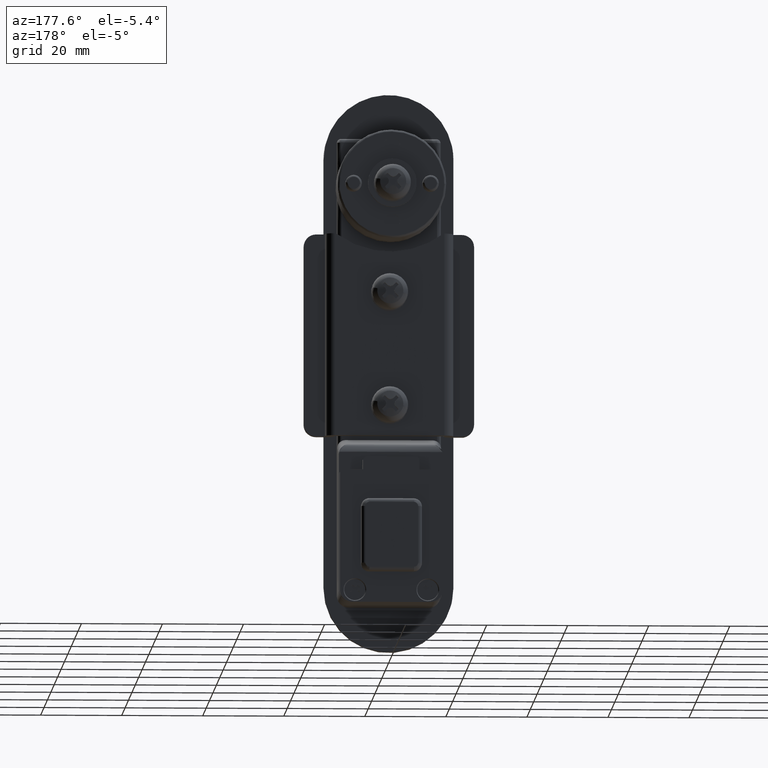
[diagram: clean part render]
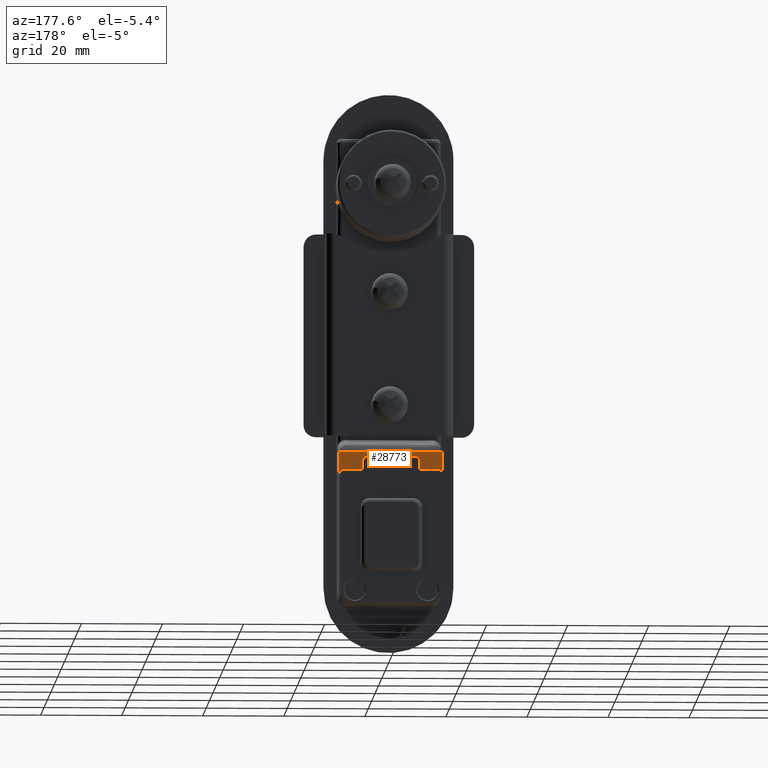
[diagram: same view with one face highlighted and labeled with its STEP entity id]
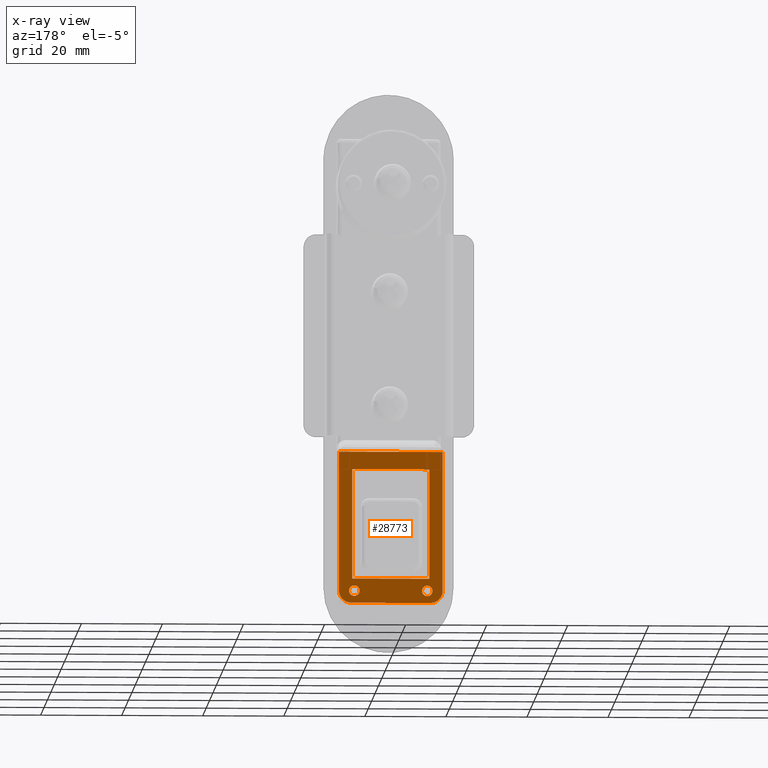
[diagram: x-ray of the same camera — body ghosted, the highlighted face saturated]
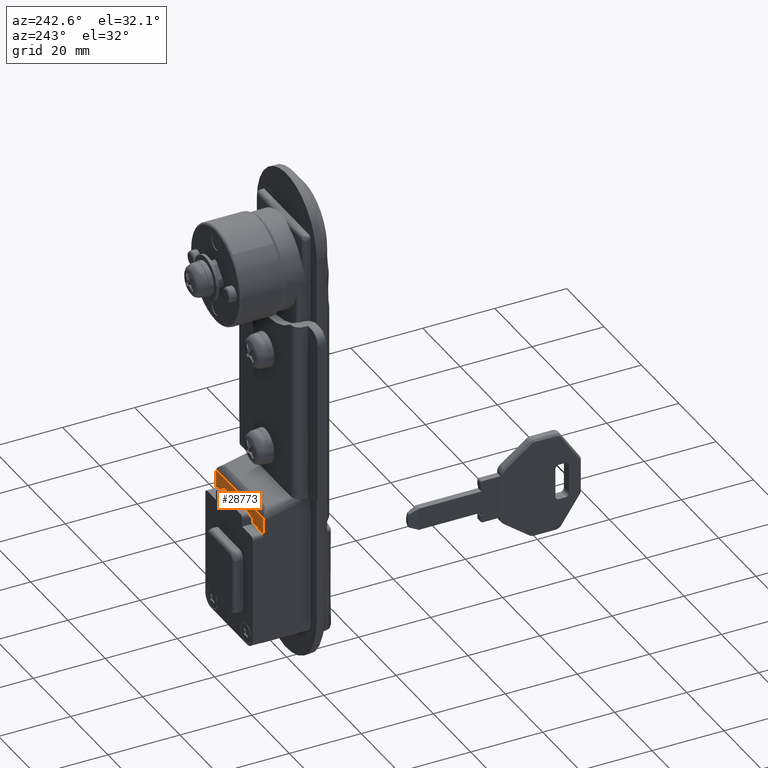
[diagram: same view with one face highlighted and labeled with its STEP entity id]
A machine part, auxiliary view. The second image highlights one B-rep face of the part: STEP entity #28773.
The next image is the same camera in x-ray: the body ghosted, the highlighted face saturated — about 0% of this face is hidden behind the body in this view.
A second angle (auxiliary view) of the same face is appended — the face is thin or edge-on in the first view.
In plain terms, the highlighted face is a freeform B-spline surface patch.
Its self-contained STEP definition (entity closure, byte-faithful):
#23675=CARTESIAN_POINT('',(13.000000000004119,-10.290912383978570,-100.046555493890910));
#23676=VERTEX_POINT('',#23675);
#23682=CARTESIAN_POINT('',(13.000000000004119,-8.999999999793321,-101.499999999680990));
#23683=VERTEX_POINT('',#23682);
#23684=CARTESIAN_POINT('',(13.000000000004118,-10.290912383978569,-100.046555493890910));
#23685=CARTESIAN_POINT('',(13.000000000004121,-10.299999999793325,-100.123008643389440));
#23686=CARTESIAN_POINT('',(13.000000000004119,-10.299999999793320,-100.199999999681000));
#23687=CARTESIAN_POINT('',(13.000000000004119,-10.299999999793322,-101.499999999680980));
#23688=CARTESIAN_POINT('',(13.000000000004119,-8.999999999793321,-101.499999999680990));
#23696=(BOUNDED_CURVE()B_SPLINE_CURVE(2,(#23684,#23685,#23686,#23687,#23688),.UNSPECIFIED.,.F.,.U.)B_SPLINE_CURVE_WITH_KNOTS((3,2,3),(0.229562473322856,0.250000000000000,0.500000000000000),.UNSPECIFIED.)CURVE()GEOMETRIC_REPRESENTATION_ITEM()RATIONAL_B_SPLINE_CURVE((0.956026753810013,0.976055948107782,1.0,0.707106781186548,1.0))REPRESENTATION_ITEM(''));
#23697=EDGE_CURVE('',#23676,#23683,#23696,.T.);
#23699=CARTESIAN_POINT('',(13.000000000004119,-7.702424762001204,-100.279363103631890));
#23700=VERTEX_POINT('',#23699);
#23701=CARTESIAN_POINT('',(13.000000000004119,-8.999999999793321,-101.499999999680990));
#23702=CARTESIAN_POINT('',(13.000000000004118,-7.777082117642104,-101.499999999680980));
#23703=CARTESIAN_POINT('',(13.000000000004125,-7.702424762001204,-100.279363103631940));
#23711=(BOUNDED_CURVE()B_SPLINE_CURVE(2,(#23701,#23702,#23703),.UNSPECIFIED.,.F.,.U.)B_SPLINE_CURVE_WITH_KNOTS((3,3),(0.500000000000000,0.739332961562291),.UNSPECIFIED.)CURVE()GEOMETRIC_REPRESENTATION_ITEM()RATIONAL_B_SPLINE_CURVE((1.0,0.719603994079458,0.976072040216523))REPRESENTATION_ITEM(''));
#23712=EDGE_CURVE('',#23683,#23700,#23711,.T.);
#23786=CARTESIAN_POINT('',(13.000000000004119,-8.999999999793321,-98.899999999681000));
#23787=VERTEX_POINT('',#23786);
#23788=CARTESIAN_POINT('',(13.000000000004119,-7.702424762001204,-100.279363103631940));
#23789=CARTESIAN_POINT('',(13.000000000004121,-7.699999999793321,-100.239718594531960));
#23790=CARTESIAN_POINT('',(13.000000000004119,-7.699999999793321,-100.199999999681000));
#23791=CARTESIAN_POINT('',(13.000000000004119,-7.699999999793321,-98.899999999681000));
#23792=CARTESIAN_POINT('',(13.000000000004119,-8.999999999793321,-98.899999999681000));
#23800=(BOUNDED_CURVE()B_SPLINE_CURVE(2,(#23788,#23789,#23790,#23791,#23792),.UNSPECIFIED.,.F.,.U.)B_SPLINE_CURVE_WITH_KNOTS((3,2,3),(0.739332961562291,0.750000000000000,1.0),.UNSPECIFIED.)CURVE()GEOMETRIC_REPRESENTATION_ITEM()RATIONAL_B_SPLINE_CURVE((0.976072040216525,0.987502787107091,1.0,0.707106781186548,1.0))REPRESENTATION_ITEM(''));
#23801=EDGE_CURVE('',#23700,#23787,#23800,.T.);
#23803=CARTESIAN_POINT('',(13.000000000004119,-8.999999999793321,-98.899999999681000));
#23804=CARTESIAN_POINT('',(13.000000000004121,-10.154626882203704,-98.899999999681015));
#23805=CARTESIAN_POINT('',(13.000000000004116,-10.290912383978569,-100.046555493890910));
#23813=(BOUNDED_CURVE()B_SPLINE_CURVE(2,(#23803,#23804,#23805),.UNSPECIFIED.,.F.,.U.)B_SPLINE_CURVE_WITH_KNOTS((3,3),(0.0,0.229562473322856),.UNSPECIFIED.)CURVE()GEOMETRIC_REPRESENTATION_ITEM()RATIONAL_B_SPLINE_CURVE((1.0,0.731050833078765,0.956026753810013))REPRESENTATION_ITEM(''));
#23814=EDGE_CURVE('',#23787,#23676,#23813,.T.);
#23861=CARTESIAN_POINT('',(13.000000000004119,7.709087616021433,-100.046555493890910));
#23862=VERTEX_POINT('',#23861);
#23868=CARTESIAN_POINT('',(13.000000000004119,9.000000000206679,-101.499999999680990));
#23869=VERTEX_POINT('',#23868);
#23870=CARTESIAN_POINT('',(13.000000000004118,7.709087616021433,-100.046555493890920));
#23871=CARTESIAN_POINT('',(13.000000000004121,7.700000000206680,-100.123008643389440));
#23872=CARTESIAN_POINT('',(13.000000000004119,7.700000000206679,-100.199999999681000));
#23873=CARTESIAN_POINT('',(13.000000000004119,7.700000000206678,-101.499999999680980));
#23874=CARTESIAN_POINT('',(13.000000000004119,9.000000000206679,-101.499999999680990));
#23882=(BOUNDED_CURVE()B_SPLINE_CURVE(2,(#23870,#23871,#23872,#23873,#23874),.UNSPECIFIED.,.F.,.U.)B_SPLINE_CURVE_WITH_KNOTS((3,2,3),(0.229562473322856,0.250000000000000,0.500000000000000),.UNSPECIFIED.)CURVE()GEOMETRIC_REPRESENTATION_ITEM()RATIONAL_B_SPLINE_CURVE((0.956026753810013,0.976055948107782,1.0,0.707106781186548,1.0))REPRESENTATION_ITEM(''));
#23883=EDGE_CURVE('',#23862,#23869,#23882,.T.);
#23885=CARTESIAN_POINT('',(13.000000000004119,10.297575237998799,-100.279363103631890));
#23886=VERTEX_POINT('',#23885);
#23887=CARTESIAN_POINT('',(13.000000000004119,9.000000000206679,-101.499999999680990));
#23888=CARTESIAN_POINT('',(13.000000000004118,10.222917882357894,-101.499999999680980));
#23889=CARTESIAN_POINT('',(13.000000000004125,10.297575237998799,-100.279363103631940));
#23897=(BOUNDED_CURVE()B_SPLINE_CURVE(2,(#23887,#23888,#23889),.UNSPECIFIED.,.F.,.U.)B_SPLINE_CURVE_WITH_KNOTS((3,3),(0.500000000000000,0.739332961562291),.UNSPECIFIED.)CURVE()GEOMETRIC_REPRESENTATION_ITEM()RATIONAL_B_SPLINE_CURVE((1.0,0.719603994079458,0.976072040216523))REPRESENTATION_ITEM(''));
#23898=EDGE_CURVE('',#23869,#23886,#23897,.T.);
#23972=CARTESIAN_POINT('',(13.000000000004119,9.000000000206679,-98.899999999681000));
#23973=VERTEX_POINT('',#23972);
#23974=CARTESIAN_POINT('',(13.000000000004123,10.297575237998799,-100.279363103631940));
#23975=CARTESIAN_POINT('',(13.000000000004123,10.300000000206680,-100.239718594531960));
#23976=CARTESIAN_POINT('',(13.000000000004119,10.300000000206680,-100.199999999681000));
#23977=CARTESIAN_POINT('',(13.000000000004119,10.300000000206678,-98.899999999681000));
#23978=CARTESIAN_POINT('',(13.000000000004119,9.000000000206679,-98.899999999681000));
#23986=(BOUNDED_CURVE()B_SPLINE_CURVE(2,(#23974,#23975,#23976,#23977,#23978),.UNSPECIFIED.,.F.,.U.)B_SPLINE_CURVE_WITH_KNOTS((3,2,3),(0.739332961562291,0.750000000000000,1.0),.UNSPECIFIED.)CURVE()GEOMETRIC_REPRESENTATION_ITEM()RATIONAL_B_SPLINE_CURVE((0.976072040216524,0.987502787107091,1.0,0.707106781186548,1.0))REPRESENTATION_ITEM(''));
#23987=EDGE_CURVE('',#23886,#23973,#23986,.T.);
#23989=CARTESIAN_POINT('',(13.000000000004119,9.000000000206679,-98.899999999681000));
#23990=CARTESIAN_POINT('',(13.000000000004121,7.845373117796297,-98.899999999681015));
#23991=CARTESIAN_POINT('',(13.000000000004116,7.709087616021433,-100.046555493890920));
#23999=(BOUNDED_CURVE()B_SPLINE_CURVE(2,(#23989,#23990,#23991),.UNSPECIFIED.,.F.,.U.)B_SPLINE_CURVE_WITH_KNOTS((3,3),(0.0,0.229562473322856),.UNSPECIFIED.)CURVE()GEOMETRIC_REPRESENTATION_ITEM()RATIONAL_B_SPLINE_CURVE((1.0,0.731050833078765,0.956026753810013))REPRESENTATION_ITEM(''));
#24000=EDGE_CURVE('',#23973,#23862,#23999,.T.);
#26908=CARTESIAN_POINT('',(13.000000000006599,9.800000000264150,-103.200000000004810));
#26909=VERTEX_POINT('',#26908);
#26910=CARTESIAN_POINT('',(13.000000000006599,12.800000000264260,-100.200000000005010));
#26911=VERTEX_POINT('',#26910);
#26912=CARTESIAN_POINT('',(13.000000000006599,9.800000000264211,-103.200000000005010));
#26913=CARTESIAN_POINT('',(13.000000000006597,12.800000000264212,-103.200000000004990));
#26914=CARTESIAN_POINT('',(13.000000000006599,12.800000000264211,-100.200000000005010));
#26922=(BOUNDED_CURVE()B_SPLINE_CURVE(2,(#26912,#26913,#26914),.UNSPECIFIED.,.F.,.U.)CURVE()GEOMETRIC_REPRESENTATION_ITEM()QUASI_UNIFORM_CURVE()RATIONAL_B_SPLINE_CURVE((1.0,0.707106781186548,1.0))REPRESENTATION_ITEM(''));
#26923=EDGE_CURVE('',#26909,#26911,#26922,.T.);
#26969=CARTESIAN_POINT('',(13.000000000006599,-12.799999999735800,-100.200000000005010));
#26970=VERTEX_POINT('',#26969);
#26971=CARTESIAN_POINT('',(13.000000000006599,-9.799999999735801,-103.200000000004810));
#26972=VERTEX_POINT('',#26971);
#26973=CARTESIAN_POINT('',(13.000000000006599,-12.799999999735800,-100.200000000005010));
#26974=CARTESIAN_POINT('',(13.000000000006597,-12.799999999735800,-103.200000000004990));
#26975=CARTESIAN_POINT('',(13.000000000006599,-9.799999999735801,-103.200000000005010));
#26983=(BOUNDED_CURVE()B_SPLINE_CURVE(2,(#26973,#26974,#26975),.UNSPECIFIED.,.F.,.U.)CURVE()GEOMETRIC_REPRESENTATION_ITEM()QUASI_UNIFORM_CURVE()RATIONAL_B_SPLINE_CURVE((1.0,0.707106781186548,1.0))REPRESENTATION_ITEM(''));
#26984=EDGE_CURVE('',#26970,#26972,#26983,.T.);
#27054=CARTESIAN_POINT('',(13.000000000006599,12.748436144277759,-65.789770558813487));
#27055=VERTEX_POINT('',#27054);
#27069=CARTESIAN_POINT('',(13.000000000006599,12.800000000264260,-66.252928453550084));
#27070=VERTEX_POINT('',#27069);
#27071=CARTESIAN_POINT('',(13.000000000006599,12.800000000264200,-66.252928453550084));
#27072=CARTESIAN_POINT('',(13.000000000006597,12.800000000264202,-66.018325244662535));
#27073=CARTESIAN_POINT('',(13.000000000006599,12.748436144277800,-65.789770558813487));
#27081=(BOUNDED_CURVE()B_SPLINE_CURVE(2,(#27071,#27072,#27073),.UNSPECIFIED.,.F.,.U.)CURVE()GEOMETRIC_REPRESENTATION_ITEM()QUASI_UNIFORM_CURVE()RATIONAL_B_SPLINE_CURVE((1.0,0.993533610907743,1.0))REPRESENTATION_ITEM(''));
#27082=EDGE_CURVE('',#27070,#27055,#27081,.T.);
#27166=CARTESIAN_POINT('',(13.000000000006599,-12.799999999735800,-66.252928453550084));
#27167=VERTEX_POINT('',#27166);
#27173=CARTESIAN_POINT('',(13.000000000006599,-12.748436143749419,-65.789770558813487));
#27174=VERTEX_POINT('',#27173);
#27175=CARTESIAN_POINT('',(13.000000000006599,-12.748436143749389,-65.789770558813487));
#27176=CARTESIAN_POINT('',(13.000000000006601,-12.799999999735798,-66.018325244662535));
#27177=CARTESIAN_POINT('',(13.000000000006599,-12.799999999735800,-66.252928453550084));
#27185=(BOUNDED_CURVE()B_SPLINE_CURVE(2,(#27175,#27176,#27177),.UNSPECIFIED.,.F.,.U.)CURVE()GEOMETRIC_REPRESENTATION_ITEM()QUASI_UNIFORM_CURVE()RATIONAL_B_SPLINE_CURVE((1.0,0.993533610907740,1.0))REPRESENTATION_ITEM(''));
#27186=EDGE_CURVE('',#27174,#27167,#27185,.T.);
#27620=CARTESIAN_POINT('',(13.000000000006599,9.500000000264189,-97.199999999999989));
#27621=VERTEX_POINT('',#27620);
#27627=CARTESIAN_POINT('',(13.000000000006599,9.500000000264189,-70.099999999999994));
#27628=VERTEX_POINT('',#27627);
#27629=CARTESIAN_POINT('',(13.000000000006599,9.500000000264189,-97.199999999999989));
#27630=CARTESIAN_POINT('',(13.000000000006599,9.500000000264189,-70.099999999999994));
#27631=QUASI_UNIFORM_CURVE('',1,(#27629,#27630),.UNSPECIFIED.,.F.,.U.);
#27632=EDGE_CURVE('',#27621,#27628,#27631,.T.);
#27677=CARTESIAN_POINT('',(13.000000000006599,-9.499999999735831,-70.099999999999994));
#27678=VERTEX_POINT('',#27677);
#27684=CARTESIAN_POINT('',(13.000000000006599,-9.499999999735831,-97.199999999999989));
#27685=VERTEX_POINT('',#27684);
#27686=CARTESIAN_POINT('',(13.000000000006599,-9.499999999735831,-97.199999999999989));
#27687=CARTESIAN_POINT('',(13.000000000006599,-9.499999999735831,-70.099999999999994));
#27688=QUASI_UNIFORM_CURVE('',1,(#27686,#27687),.UNSPECIFIED.,.F.,.U.);
#27689=EDGE_CURVE('',#27685,#27678,#27688,.T.);
#27732=CARTESIAN_POINT('',(13.000000000006599,-9.499999999735831,-70.099999999999994));
#27733=CARTESIAN_POINT('',(13.000000000006599,9.500000000264189,-70.099999999999994));
#27734=QUASI_UNIFORM_CURVE('',1,(#27732,#27733),.UNSPECIFIED.,.F.,.U.);
#27735=EDGE_CURVE('',#27678,#27628,#27734,.T.);
#27808=CARTESIAN_POINT('',(13.000000000006599,-9.499999999735831,-97.199999999999989));
#27809=CARTESIAN_POINT('',(13.000000000006599,9.500000000264189,-97.199999999999989));
#27810=QUASI_UNIFORM_CURVE('',1,(#27808,#27809),.UNSPECIFIED.,.F.,.U.);
#27811=EDGE_CURVE('',#27685,#27621,#27810,.T.);
#28255=CARTESIAN_POINT('',(13.000000000006599,12.800000000264260,-66.252928453550084));
#28256=CARTESIAN_POINT('',(13.000000000006599,12.800000000264260,-100.200000000005010));
#28257=QUASI_UNIFORM_CURVE('',1,(#28255,#28256),.UNSPECIFIED.,.F.,.U.);
#28258=EDGE_CURVE('',#27070,#26911,#28257,.T.);
#28277=CARTESIAN_POINT('',(13.000000000006599,-12.799999999735800,-66.252928453550084));
#28278=CARTESIAN_POINT('',(13.000000000006599,-12.799999999735800,-100.200000000005010));
#28279=QUASI_UNIFORM_CURVE('',1,(#28277,#28278),.UNSPECIFIED.,.F.,.U.);
#28280=EDGE_CURVE('',#27167,#26970,#28279,.T.);
#28316=CARTESIAN_POINT('',(13.000000000006599,-12.748436143749419,-65.789770558813487));
#28317=CARTESIAN_POINT('',(13.000000000006599,12.748436144277759,-65.789770558813487));
#28318=QUASI_UNIFORM_CURVE('',1,(#28316,#28317),.UNSPECIFIED.,.F.,.U.);
#28319=EDGE_CURVE('',#27174,#27055,#28318,.T.);
#28371=CARTESIAN_POINT('',(13.000000000006599,-9.799999999735801,-103.200000000004810));
#28372=CARTESIAN_POINT('',(13.000000000006599,9.800000000264150,-103.200000000004810));
#28373=QUASI_UNIFORM_CURVE('',1,(#28371,#28372),.UNSPECIFIED.,.F.,.U.);
#28374=EDGE_CURVE('',#26972,#26909,#28373,.T.);
#28740=CARTESIAN_POINT('',(13.000000000006599,-14.078720190432520,-63.921131209111742));
#28741=CARTESIAN_POINT('',(13.000000000006599,-14.078720190432520,-105.068639015233100));
#28742=CARTESIAN_POINT('',(13.000000000006599,14.078720648724660,-63.921131209111742));
#28743=CARTESIAN_POINT('',(13.000000000006599,14.078720648724660,-105.068639015233100));
#28744=B_SPLINE_SURFACE_WITH_KNOTS('',1,1,((#28740,#28742),(#28741,#28743)),.UNSPECIFIED.,.F.,.F.,.U.,(2,2),(2,2),(0.0,41.147507806121297),(0.0,28.157440839157179),.UNSPECIFIED.);
#28745=ORIENTED_EDGE('',*,*,#28319,.F.);
#28746=ORIENTED_EDGE('',*,*,#27186,.T.);
#28747=ORIENTED_EDGE('',*,*,#28280,.T.);
#28748=ORIENTED_EDGE('',*,*,#26984,.T.);
#28749=ORIENTED_EDGE('',*,*,#28374,.T.);
#28750=ORIENTED_EDGE('',*,*,#26923,.T.);
#28751=ORIENTED_EDGE('',*,*,#28258,.F.);
#28752=ORIENTED_EDGE('',*,*,#27082,.T.);
#28753=EDGE_LOOP('',(#28745,#28746,#28747,#28748,#28749,#28750,#28751,#28752));
#28754=FACE_OUTER_BOUND('',#28753,.T.);
#28755=ORIENTED_EDGE('',*,*,#27811,.F.);
#28756=ORIENTED_EDGE('',*,*,#27689,.T.);
#28757=ORIENTED_EDGE('',*,*,#27735,.T.);
#28758=ORIENTED_EDGE('',*,*,#27632,.F.);
#28759=EDGE_LOOP('',(#28755,#28756,#28757,#28758));
#28760=FACE_BOUND('',#28759,.T.);
#28761=ORIENTED_EDGE('',*,*,#23898,.F.);
#28762=ORIENTED_EDGE('',*,*,#23883,.F.);
#28763=ORIENTED_EDGE('',*,*,#24000,.F.);
#28764=ORIENTED_EDGE('',*,*,#23987,.F.);
#28765=EDGE_LOOP('',(#28761,#28762,#28763,#28764));
#28766=FACE_BOUND('',#28765,.T.);
#28767=ORIENTED_EDGE('',*,*,#23712,.F.);
#28768=ORIENTED_EDGE('',*,*,#23697,.F.);
#28769=ORIENTED_EDGE('',*,*,#23814,.F.);
#28770=ORIENTED_EDGE('',*,*,#23801,.F.);
#28771=EDGE_LOOP('',(#28767,#28768,#28769,#28770));
#28772=FACE_BOUND('',#28771,.T.);
#28773=ADVANCED_FACE('',(#28754,#28760,#28766,#28772),#28744,.T.);